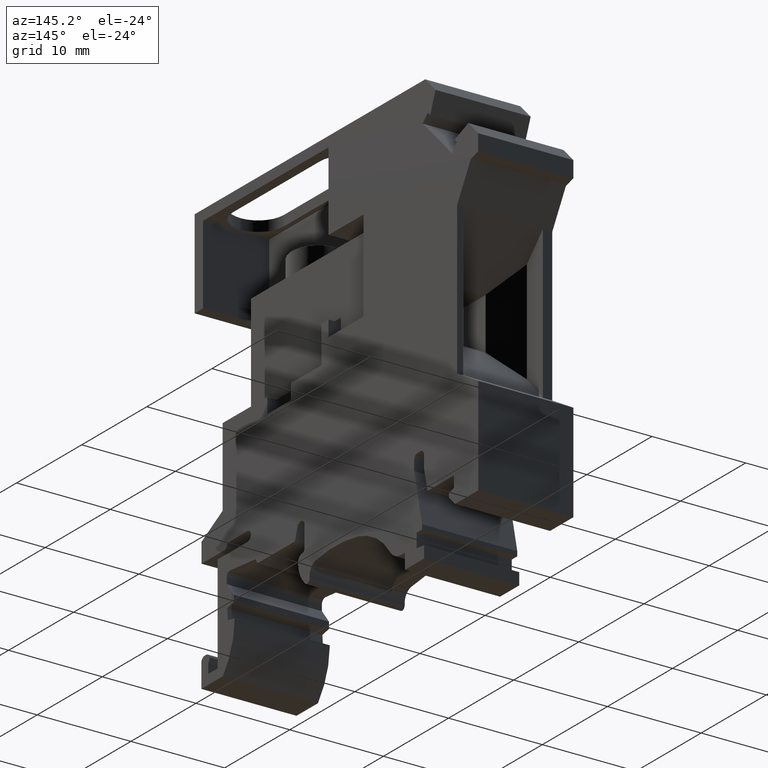
[diagram: clean part render]
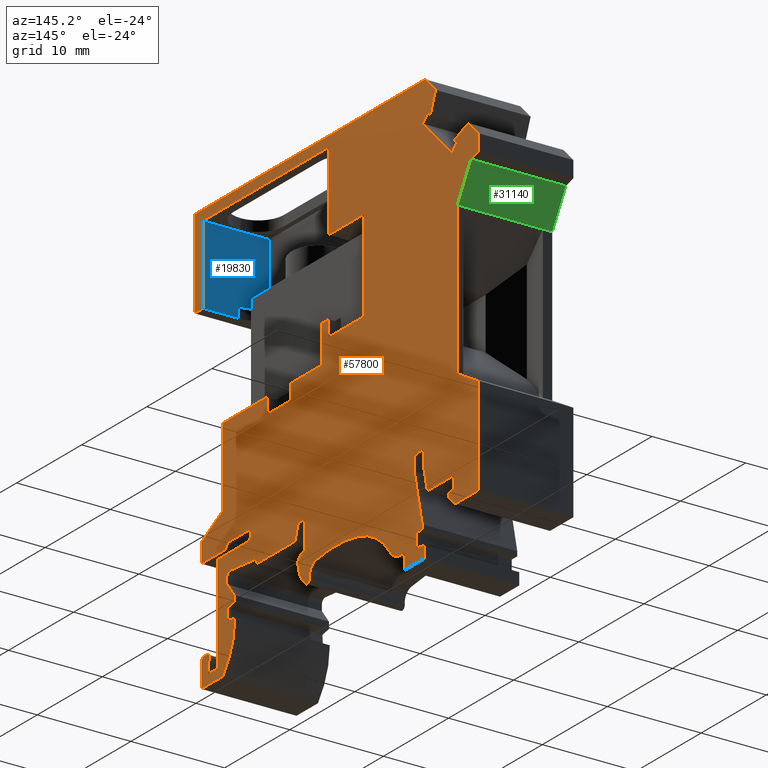
[diagram: same view with three faces highlighted in distinct colors, each labeled with its STEP entity id]
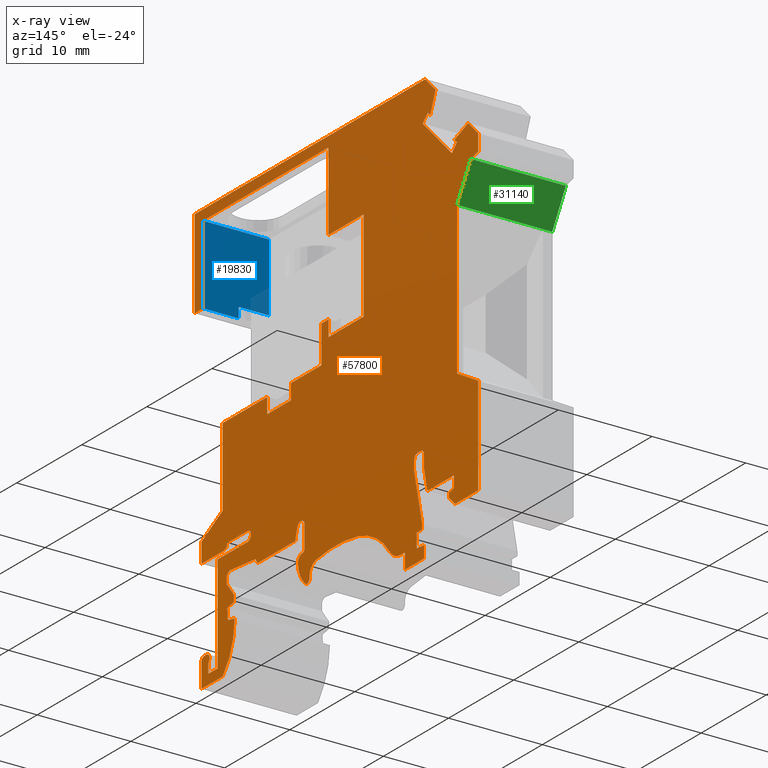
[diagram: x-ray of the same camera — body ghosted, the three highlighted faces saturated]
A machine part, auxiliary view with three faces highlighted in distinct colors.
The next image is the same camera in x-ray (body ghosted, the three faces saturated) — at least one of them is partly hidden behind the body in this view.
Their STEP definitions:

[orange] entity #57800 — the highlighted planar face has unit normal (1, 0, 0).
#6840=CARTESIAN_POINT('',(53.0791997327281,27.9086581777008,10.15));
#6850=VERTEX_POINT('',#6840);
#6930=CARTESIAN_POINT('',(53.0791997327281,26.1667997489968,10.15));
#6940=VERTEX_POINT('',#6930);
#6970=CARTESIAN_POINT('',(53.0791997327281,0.,10.15));
#6980=DIRECTION('',(0.,-1.,0.));
#6990=VECTOR('',#6980,1.);
#7000=LINE('',#6970,#6990);
#7010=EDGE_CURVE('',#6850,#6940,#7000,.T.);
#7180=CARTESIAN_POINT('',(80.9878579104221,0.,10.15));
#7190=DIRECTION('',(0.707106781186461,-0.707106781186634,0.));
#7200=VECTOR('',#7190,1.);
#7210=LINE('',#7180,#7200);
#7220=CARTESIAN_POINT('',(51.5462554799543,29.441602430475,10.15));
#7230=VERTEX_POINT('',#7220);
#7240=EDGE_CURVE('',#7230,#6850,#7210,.T.);
#7540=CARTESIAN_POINT('',(53.0791997327281,4.16587233737272,10.15));
#7550=VERTEX_POINT('',#7540);
#7580=CARTESIAN_POINT('',(0.,34.8111625914277,10.15));
#7590=DIRECTION('',(0.866025403784478,-0.499999999999933,0.));
#7600=VECTOR('',#7590,1.);
#7610=LINE('',#7580,#7600);
#7620=CARTESIAN_POINT('',(49.8291997327281,6.04226071223867,10.15));
#7630=VERTEX_POINT('',#7620);
#7640=EDGE_CURVE('',#7630,#7550,#7610,.T.);
#7990=CARTESIAN_POINT('',(25.2114315138149,0.,10.15));
#8000=DIRECTION('',(-0.258819045102482,-0.965925826289079,0.));
#8010=VECTOR('',#8000,1.);
#8020=LINE('',#7990,#8010);
#8030=CARTESIAN_POINT('',(25.288619021463,0.288067700252134,10.15));
#8040=VERTEX_POINT('',#8030);
#8050=CARTESIAN_POINT('',(24.9591997327282,-0.941341822299137,10.15));
#8060=VERTEX_POINT('',#8050);
#8070=EDGE_CURVE('',#8040,#8060,#8020,.T.);
#8370=CARTESIAN_POINT('',(13.4955573322749,0.,10.15));
#8380=DIRECTION('',(0.61566147532565,-0.788010753606728,0.));
#8390=VECTOR('',#8380,1.);
#8400=LINE('',#8370,#8390);
#8410=CARTESIAN_POINT('',(14.4591997327282,-1.23340602688677,10.15));
#8420=VERTEX_POINT('',#8410);
#8430=CARTESIAN_POINT('',(15.5591997327281,-2.64134182229907,10.15));
#8440=VERTEX_POINT('',#8430);
#8450=EDGE_CURVE('',#8420,#8440,#8400,.T.);
#8750=CARTESIAN_POINT('',(0.,-0.941341822299137,10.15));
#8760=DIRECTION('',(-1.,0.,0.));
#8770=VECTOR('',#8760,1.);
#8780=LINE('',#8750,#8770);
#8790=CARTESIAN_POINT('',(19.1591997327283,-0.941341822299138,10.15));
#8800=VERTEX_POINT('',#8790);
#8810=EDGE_CURVE('',#8060,#8800,#8780,.T.);
#9540=CARTESIAN_POINT('',(0.,0.658658177700886,10.15));
#9550=DIRECTION('',(-1.,0.,0.));
#9560=VECTOR('',#9550,1.);
#9570=LINE('',#9540,#9560);
#9580=CARTESIAN_POINT('',(25.8841997327282,0.658658177700943,10.15));
#9590=VERTEX_POINT('',#9580);
#9600=CARTESIAN_POINT('',(25.7715819346075,0.658658177700858,10.15));
#9610=VERTEX_POINT('',#9600);
#9620=EDGE_CURVE('',#9590,#9610,#9570,.T.);
#9920=CARTESIAN_POINT('',(25.7715819346075,0.158658177700943,10.15));
#9930=DIRECTION('',(0.,0.,1.));
#9940=DIRECTION('',(1.,0.,0.));
#9950=AXIS2_PLACEMENT_3D('',#9920,#9930,#9940);
#9960=CIRCLE('',#9950,0.499999999999915);
#9970=EDGE_CURVE('',#9610,#8040,#9960,.T.);
#10170=CARTESIAN_POINT('',(26.0841997327282,-2.19134182229914,10.15));
#10180=DIRECTION('',(0.,0.,1.));
#10190=DIRECTION('',(1.,0.,0.));
#10200=AXIS2_PLACEMENT_3D('',#10170,#10180,#10190);
#10210=CIRCLE('',#10200,0.300000000000011);
#10220=CARTESIAN_POINT('',(26.0841997327282,-2.49134182229915,10.15));
#10230=VERTEX_POINT('',#10220);
#10240=CARTESIAN_POINT('',(26.3841997327282,-2.19134182229914,10.15));
#10250=VERTEX_POINT('',#10240);
#10260=EDGE_CURVE('',#10230,#10250,#10210,.T.);
#10560=CARTESIAN_POINT('',(26.3841997327282,0.,10.15));
#10570=DIRECTION('',(0.,1.,0.));
#10580=VECTOR('',#10570,1.);
#10590=LINE('',#10560,#10580);
#10600=CARTESIAN_POINT('',(26.3841997327282,0.158658177700943,10.15));
#10610=VERTEX_POINT('',#10600);
#10620=EDGE_CURVE('',#10250,#10610,#10590,.T.);
#11260=CARTESIAN_POINT('',(14.4591997327282,0.,10.15));
#11270=DIRECTION('',(0.,-1.,0.));
#11280=VECTOR('',#11270,1.);
#11290=LINE('',#11260,#11280);
#11300=CARTESIAN_POINT('',(14.4591997327282,-0.591086257533789,10.15));
#11310=VERTEX_POINT('',#11300);
#11320=EDGE_CURVE('',#11310,#8420,#11290,.T.);
#11570=CARTESIAN_POINT('',(25.8841997327282,0.158658177700943,10.15));
#11580=DIRECTION('',(0.,0.,1.));
#11590=DIRECTION('',(1.,0.,0.));
#11600=AXIS2_PLACEMENT_3D('',#11570,#11580,#11590);
#11610=CIRCLE('',#11600,0.5);
#11620=EDGE_CURVE('',#10610,#9590,#11610,.T.);
#11880=CARTESIAN_POINT('',(53.0791997327281,-6.34134182229906,10.15));
#11890=VERTEX_POINT('',#11880);
#11920=CARTESIAN_POINT('',(53.0791997327281,0.,10.15));
#11930=DIRECTION('',(0.,-1.,0.));
#11940=VECTOR('',#11930,1.);
#11950=LINE('',#11920,#11940);
#11960=EDGE_CURVE('',#7550,#11890,#11950,.T.);
#12170=CARTESIAN_POINT('',(45.2591997327283,-3.54134182229916,10.15));
#12180=VERTEX_POINT('',#12170);
#12260=CARTESIAN_POINT('',(44.7341997327283,-1.17321985787694,10.15));
#12270=VERTEX_POINT('',#12260);
#12300=CARTESIAN_POINT('',(44.4741031521303,0.,10.15));
#12310=DIRECTION('',(-0.216439613938128,0.976296007119928,0.));
#12320=VECTOR('',#12310,1.);
#12330=LINE('',#12300,#12320);
#12340=EDGE_CURVE('',#12180,#12270,#12330,.T.);
#12510=CARTESIAN_POINT('',(14.959199732728,-0.591086257533675,10.15));
#12520=DIRECTION('',(0.,0.,1.));
#12530=DIRECTION('',(1.,0.,0.));
#12540=AXIS2_PLACEMENT_3D('',#12510,#12520,#12530);
#12550=CIRCLE('',#12540,0.499999999999955);
#12560=CARTESIAN_POINT('',(14.9987460769531,-0.0926526243803896,10.15));
#12570=VERTEX_POINT('',#12560);
#12580=EDGE_CURVE('',#12570,#11310,#12550,.T.);
#12830=CARTESIAN_POINT('',(0.,-1.56956935129551,10.15));
#12840=DIRECTION('',(0.875877707971958,0.482533149822672,0.));
#12850=VECTOR('',#12840,1.);
#12860=LINE('',#12830,#12850);
#12870=CARTESIAN_POINT('',(10.5791997327281,4.25865817770092,10.15));
#12880=VERTEX_POINT('',#12870);
#12890=CARTESIAN_POINT('',(13.8291997327281,6.04912815159126,10.15));
#12900=VERTEX_POINT('',#12890);
#12910=EDGE_CURVE('',#12880,#12900,#12860,.T.);
#14030=CARTESIAN_POINT('',(13.8291997327281,14.458658177701,10.15));
#14040=VERTEX_POINT('',#14030);
#14070=CARTESIAN_POINT('',(13.8291997327281,0.,10.15));
#14080=DIRECTION('',(0.,1.,0.));
#14090=VECTOR('',#14080,1.);
#14100=LINE('',#14070,#14090);
#14110=EDGE_CURVE('',#12900,#14040,#14100,.T.);
#14310=CARTESIAN_POINT('',(9.51919973272817,0.,10.15));
#14320=DIRECTION('',(0.,-1.,0.));
#14330=VECTOR('',#14320,1.);
#14340=LINE('',#14310,#14330);
#14350=CARTESIAN_POINT('',(9.51919973272817,36.058658177701,10.15));
#14360=VERTEX_POINT('',#14350);
#14370=CARTESIAN_POINT('',(9.51919973272817,26.5586581777009,10.15));
#14380=VERTEX_POINT('',#14370);
#14390=EDGE_CURVE('',#14360,#14380,#14340,.T.);
#14820=CARTESIAN_POINT('',(49.4036845679783,28.6072537936553,10.15));
#14830=VERTEX_POINT('',#14820);
#14880=CARTESIAN_POINT('',(0.,9.36873214531093,10.15));
#14890=DIRECTION('',(0.931839057156059,0.362871839026545,0.));
#14900=VECTOR('',#14890,1.);
#14910=LINE('',#14880,#14900);
#14920=EDGE_CURVE('',#14830,#7230,#14910,.T.);
#15090=CARTESIAN_POINT('',(0.,-21.5429919460219,10.15));
#15100=DIRECTION('',(0.70710678118662,0.707106781186476,0.));
#15110=VECTOR('',#15100,1.);
#15120=LINE('',#15090,#15110);
#15130=CARTESIAN_POINT('',(49.0203608979632,27.4773689519313,10.15));
#15140=VERTEX_POINT('',#15130);
#15150=CARTESIAN_POINT('',(49.7769651538329,28.2339732078008,10.15));
#15160=VERTEX_POINT('',#15150);
#15170=EDGE_CURVE('',#15140,#15160,#15120,.T.);
#15470=CARTESIAN_POINT('',(0.,78.0109383616187,10.15));
#15480=DIRECTION('',(-0.707106781186654,0.707106781186441,0.));
#15490=VECTOR('',#15480,1.);
#15500=LINE('',#15470,#15490);
#15510=EDGE_CURVE('',#15160,#14830,#15500,.T.);
#15720=CARTESIAN_POINT('',(76.4977298498922,0.,10.15));
#15730=DIRECTION('',(-0.707106781186519,0.707106781186576,0.));
#15740=VECTOR('',#15730,1.);
#15750=LINE('',#15720,#15740);
#15760=CARTESIAN_POINT('',(44.5479105069585,31.9498193429363,10.15));
#15770=VERTEX_POINT('',#15760);
#15780=EDGE_CURVE('',#15140,#15770,#15750,.T.);
#16020=CARTESIAN_POINT('',(12.5980911640221,0.,10.15));
#16030=DIRECTION('',(-0.707106781186548,-0.707106781186548,0.));
#16040=VECTOR('',#16030,1.);
#16050=LINE('',#16020,#16040);
#16060=CARTESIAN_POINT('',(45.304514762828,32.7064235988058,10.15));
#16070=VERTEX_POINT('',#16060);
#16080=EDGE_CURVE('',#16070,#15770,#16050,.T.);
#16370=CARTESIAN_POINT('',(45.6777953486824,32.3331430129513,10.15));
#16380=VERTEX_POINT('',#16370);
#16430=CARTESIAN_POINT('',(78.010938361624,0.,10.15));
#16440=DIRECTION('',(-0.707106781186441,0.707106781186654,0.));
#16450=VECTOR('',#16440,1.);
#16460=LINE('',#16430,#16450);
#16470=EDGE_CURVE('',#16380,#16070,#16460,.T.);
#16680=CARTESIAN_POINT('',(46.5121439855021,34.4757139249269,10.15));
#16690=VERTEX_POINT('',#16680);
#16740=CARTESIAN_POINT('',(33.086793741143,0.,10.15));
#16750=DIRECTION('',(-0.362871839026601,-0.931839057156037,0.));
#16760=VECTOR('',#16750,1.);
#16770=LINE('',#16740,#16760);
#16780=EDGE_CURVE('',#16690,#16380,#16770,.T.);
#16950=CARTESIAN_POINT('',(80.9878579104291,0.,10.15));
#16960=DIRECTION('',(0.707106781186548,-0.707106781186548,0.));
#16970=VECTOR('',#16960,1.);
#16980=LINE('',#16950,#16970);
#16990=CARTESIAN_POINT('',(44.9291997327281,36.058658177701,10.15));
#17000=VERTEX_POINT('',#16990);
#17010=EDGE_CURVE('',#17000,#16690,#16980,.T.);
#17820=CARTESIAN_POINT('',(0.,36.058658177701,10.15));
#17830=DIRECTION('',(1.,0.,0.));
#17840=VECTOR('',#17830,1.);
#17850=LINE('',#17820,#17840);
#17860=EDGE_CURVE('',#14360,#17000,#17850,.T.);
#18790=CARTESIAN_POINT('',(30.0791997327281,34.958658177701,10.15));
#18800=VERTEX_POINT('',#18790);
#18950=CARTESIAN_POINT('',(10.8191997327281,34.958658177701,10.15));
#18960=VERTEX_POINT('',#18950);
#18990=CARTESIAN_POINT('',(0.,34.958658177701,10.15));
#19000=DIRECTION('',(-1.,0.,0.));
#19010=VECTOR('',#19000,1.);
#19020=LINE('',#18990,#19010);
#19030=EDGE_CURVE('',#18800,#18960,#19020,.T.);
#19200=CARTESIAN_POINT('',(0.,26.5586581777009,10.15));
#19210=DIRECTION('',(-1.,0.,0.));
#19220=VECTOR('',#19210,1.);
#19230=LINE('',#19200,#19220);
#19240=CARTESIAN_POINT('',(10.8191997327281,26.5586581777009,10.15));
#19250=VERTEX_POINT('',#19240);
#19260=EDGE_CURVE('',#19250,#14380,#19230,.T.);
#19670=CARTESIAN_POINT('',(10.8191997327281,0.,10.15));
#19680=DIRECTION('',(0.,-1.,0.));
#19690=VECTOR('',#19680,1.);
#19700=LINE('',#19670,#19690);
#19710=EDGE_CURVE('',#18960,#19250,#19700,.T.);
#20000=CARTESIAN_POINT('',(13.8646161327159,-9.84134182229906,10.15));
#20010=VERTEX_POINT('',#20000);
#20090=CARTESIAN_POINT('',(10.5591997327281,-9.84134182229906,10.15));
#20100=VERTEX_POINT('',#20090);
#20130=CARTESIAN_POINT('',(0.,-9.84134182229906,10.15));
#20140=DIRECTION('',(-1.,0.,0.));
#20150=VECTOR('',#20140,1.);
#20160=LINE('',#20130,#20150);
#20170=EDGE_CURVE('',#20010,#20100,#20160,.T.);
#20340=CARTESIAN_POINT('',(49.3341997327282,0.,10.15));
#20350=DIRECTION('',(0.,1.,0.));
#20360=VECTOR('',#20350,1.);
#20370=LINE('',#20340,#20360);
#20380=CARTESIAN_POINT('',(49.3341997327282,-4.74134182229915,10.15));
#20390=VERTEX_POINT('',#20380);
#20400=CARTESIAN_POINT('',(49.3341997327282,-3.54134182229916,10.15));
#20410=VERTEX_POINT('',#20400);
#20420=EDGE_CURVE('',#20390,#20410,#20370,.T.);
#21820=CARTESIAN_POINT('',(30.0791997327281,26.5586581777009,10.15));
#21830=VERTEX_POINT('',#21820);
#21880=CARTESIAN_POINT('',(30.0791997327281,0.,10.15));
#21890=DIRECTION('',(0.,1.,0.));
#21900=VECTOR('',#21890,1.);
#21910=LINE('',#21880,#21900);
#21920=EDGE_CURVE('',#21830,#18800,#21910,.T.);
#22090=CARTESIAN_POINT('',(30.0791997327281,26.5586581777009,10.15));
#22100=DIRECTION('',(1.,0.,0.));
#22110=VECTOR('',#22100,1.);
#22120=LINE('',#22090,#22110);
#22130=CARTESIAN_POINT('',(35.4791997327281,26.5586581777009,10.15));
#22140=VERTEX_POINT('',#22130);
#22150=EDGE_CURVE('',#21830,#22140,#22120,.T.);
#22660=CARTESIAN_POINT('',(35.4791997327281,0.,10.15));
#22670=DIRECTION('',(3.53307768457147E-16,1.,0.));
#22680=VECTOR('',#22670,1.);
#22690=LINE('',#22660,#22680);
#22700=CARTESIAN_POINT('',(35.4791997327281,16.758658177701,10.15));
#22710=VERTEX_POINT('',#22700);
#22720=EDGE_CURVE('',#22710,#22140,#22690,.T.);
#22990=CARTESIAN_POINT('',(10.5791997327281,2.15865817770094,10.15));
#23000=VERTEX_POINT('',#22990);
#23030=CARTESIAN_POINT('',(0.,2.15865817770094,10.15));
#23040=DIRECTION('',(-1.,0.,0.));
#23050=VECTOR('',#23040,1.);
#23060=LINE('',#23030,#23050);
#23070=CARTESIAN_POINT('',(14.0113065139147,2.15865817770094,10.15));
#23080=VERTEX_POINT('',#23070);
#23090=EDGE_CURVE('',#23080,#23000,#23060,.T.);
#23370=CARTESIAN_POINT('',(17.6341997327282,1.65865817770094,10.15));
#23380=VERTEX_POINT('',#23370);
#23460=CARTESIAN_POINT('',(18.1536041568128,2.15865817769072,10.15));
#23470=VERTEX_POINT('',#23460);
#23500=CARTESIAN_POINT('',(17.6316997327281,2.18103615558056,10.15));
#23510=DIRECTION('',(0.,0.,1.));
#23520=DIRECTION('',(1.,0.,0.));
#23530=AXIS2_PLACEMENT_3D('',#23500,#23510,#23520);
#23540=CIRCLE('',#23530,0.522383960103672);
#23550=EDGE_CURVE('',#23380,#23470,#23540,.T.);
#23720=CARTESIAN_POINT('',(44.4591997327282,0.,10.15));
#23730=DIRECTION('',(0.,-1.,0.));
#23740=VECTOR('',#23730,1.);
#23750=LINE('',#23720,#23740);
#23760=CARTESIAN_POINT('',(44.4591997327282,-6.44134182229913,10.15));
#23770=VERTEX_POINT('',#23760);
#23780=CARTESIAN_POINT('',(44.4591997327282,-6.94134182229914,10.15));
#23790=VERTEX_POINT('',#23780);
#23800=EDGE_CURVE('',#23770,#23790,#23750,.T.);
#24160=CARTESIAN_POINT('',(17.6291997327282,2.70865817770101,10.15));
#24170=VERTEX_POINT('',#24160);
#24200=CARTESIAN_POINT('',(17.6291997327282,2.18365817770098,10.15));
#24210=DIRECTION('',(0.,0.,1.));
#24220=DIRECTION('',(1.,0.,0.));
#24230=AXIS2_PLACEMENT_3D('',#24200,#24210,#24220);
#24240=CIRCLE('',#24230,0.52500000000003);
#24250=EDGE_CURVE('',#23470,#24170,#24240,.T.);
#24460=CARTESIAN_POINT('',(30.0791997327281,18.458658177701,10.15));
#24470=VERTEX_POINT('',#24460);
#24640=CARTESIAN_POINT('',(30.0791997327281,16.758658177701,10.15));
#24650=VERTEX_POINT('',#24640);
#24680=CARTESIAN_POINT('',(30.0791997327281,0.,10.15));
#24690=DIRECTION('',(0.,-1.,0.));
#24700=VECTOR('',#24690,1.);
#24710=LINE('',#24680,#24700);
#24720=EDGE_CURVE('',#24470,#24650,#24710,.T.);
#24900=CARTESIAN_POINT('',(0.,16.758658177701,10.15));
#24910=DIRECTION('',(1.,0.,0.));
#24920=VECTOR('',#24910,1.);
#24930=LINE('',#24900,#24920);
#24940=EDGE_CURVE('',#24650,#22710,#24930,.T.);
#25340=CARTESIAN_POINT('',(28.3725317637343,-5.10246528334324,10.15));
#25350=DIRECTION('',(0.,0.,1.));
#25360=DIRECTION('',(1.,0.,0.));
#25370=AXIS2_PLACEMENT_3D('',#25340,#25350,#25360);
#25380=CIRCLE('',#25370,1.20000000000004);
#25390=CARTESIAN_POINT('',(28.1495983262149,-3.9233551602267,10.15));
#25400=VERTEX_POINT('',#25390);
#25410=CARTESIAN_POINT('',(27.1812827404797,-5.24712268756014,10.15));
#25420=VERTEX_POINT('',#25410);
#25430=EDGE_CURVE('',#25400,#25420,#25380,.T.);
#25730=CARTESIAN_POINT('',(0.,-6.94134182229914,10.15));
#25740=DIRECTION('',(-1.,0.,0.));
#25750=VECTOR('',#25740,1.);
#25760=LINE('',#25730,#25750);
#25770=CARTESIAN_POINT('',(43.6091997327282,-6.94134182229914,10.15));
#25780=VERTEX_POINT('',#25770);
#25790=EDGE_CURVE('',#23790,#25780,#25760,.T.);
#26040=CARTESIAN_POINT('',(43.2341997327282,0.,10.15));
#26050=DIRECTION('',(0.,-1.,0.));
#26060=VECTOR('',#26050,1.);
#26070=LINE('',#26040,#26060);
#26080=CARTESIAN_POINT('',(43.2341997327282,0.158658177700943,10.15));
#26090=VERTEX_POINT('',#26080);
#26100=CARTESIAN_POINT('',(43.2341997327282,-0.915723905312957,10.15));
#26110=VERTEX_POINT('',#26100);
#26120=EDGE_CURVE('',#26090,#26110,#26070,.T.);
#26480=CARTESIAN_POINT('',(14.5113065139147,2.70865817770095,10.15));
#26490=VERTEX_POINT('',#26480);
#26520=CARTESIAN_POINT('',(0.,2.70865817770095,10.15));
#26530=DIRECTION('',(-1.,0.,0.));
#26540=VECTOR('',#26530,1.);
#26550=LINE('',#26520,#26540);
#26560=EDGE_CURVE('',#24170,#26490,#26550,.T.);
#27160=CARTESIAN_POINT('',(0.,18.458658177701,10.15));
#27170=DIRECTION('',(-1.,0.,0.));
#27180=VECTOR('',#27170,1.);
#27190=LINE('',#27160,#27180);
#27200=CARTESIAN_POINT('',(28.9791997327281,18.458658177701,10.15));
#27210=VERTEX_POINT('',#27200);
#27220=EDGE_CURVE('',#24470,#27210,#27190,.T.);
#27680=CARTESIAN_POINT('',(28.9791997327281,14.458658177701,10.15));
#27690=VERTEX_POINT('',#27680);
#27720=CARTESIAN_POINT('',(0.,14.458658177701,10.15));
#27730=DIRECTION('',(-1.,0.,0.));
#27740=VECTOR('',#27730,1.);
#27750=LINE('',#27720,#27740);
#27760=CARTESIAN_POINT('',(24.2791997327282,14.458658177701,10.15));
#27770=VERTEX_POINT('',#27760);
#27780=EDGE_CURVE('',#27690,#27770,#27750,.T.);
#28090=CARTESIAN_POINT('',(20.6791997327281,14.458658177701,10.15));
#28100=VERTEX_POINT('',#28090);
#28130=CARTESIAN_POINT('',(0.,14.458658177701,10.15));
#28140=DIRECTION('',(1.,0.,0.));
#28150=VECTOR('',#28140,1.);
#28160=LINE('',#28130,#28150);
#28170=EDGE_CURVE('',#14040,#28100,#28160,.T.);
#28690=CARTESIAN_POINT('',(20.6791997327281,12.8086581777009,10.15));
#28700=VERTEX_POINT('',#28690);
#28870=CARTESIAN_POINT('',(24.2791997327282,12.8086581777009,10.15));
#28880=VERTEX_POINT('',#28870);
#28910=CARTESIAN_POINT('',(0.,12.8086581777009,10.15));
#28920=DIRECTION('',(1.,0.,0.));
#28930=VECTOR('',#28920,1.);
#28940=LINE('',#28910,#28930);
#28950=EDGE_CURVE('',#28700,#28880,#28940,.T.);
#29390=CARTESIAN_POINT('',(20.6791997327281,0.,10.15));
#29400=DIRECTION('',(0.,-1.,0.));
#29410=VECTOR('',#29400,1.);
#29420=LINE('',#29390,#29410);
#29430=EDGE_CURVE('',#28100,#28700,#29420,.T.);
#29630=CARTESIAN_POINT('',(24.2791997327282,0.,10.15));
#29640=DIRECTION('',(0.,1.,0.));
#29650=VECTOR('',#29640,1.);
#29660=LINE('',#29630,#29650);
#29670=EDGE_CURVE('',#28880,#27770,#29660,.T.);
#29900=CARTESIAN_POINT('',(44.7341997327283,0.158658177700943,10.15));
#29910=VERTEX_POINT('',#29900);
#29940=CARTESIAN_POINT('',(44.7341997327283,0.,10.15));
#29950=DIRECTION('',(0.,1.,0.));
#29960=VECTOR('',#29950,1.);
#29970=LINE('',#29940,#29960);
#29980=EDGE_CURVE('',#12270,#29910,#29970,.T.);
#30150=CARTESIAN_POINT('',(0.,-17.0748917554812,10.15));
#30160=DIRECTION('',(0.970142500145332,0.242535625036333,0.));
#30170=VECTOR('',#30160,1.);
#30180=LINE('',#30150,#30170);
#30190=CARTESIAN_POINT('',(48.5341997327282,-4.94134182229914,10.15));
#30200=VERTEX_POINT('',#30190);
#30210=EDGE_CURVE('',#30200,#20390,#30180,.T.);
#30460=CARTESIAN_POINT('',(48.5341997327282,0.,10.15));
#30470=DIRECTION('',(0.,1.,0.));
#30480=VECTOR('',#30470,1.);
#30490=LINE('',#30460,#30480);
#30500=CARTESIAN_POINT('',(48.5341997327282,-5.39134182229908,10.15));
#30510=VERTEX_POINT('',#30500);
#30520=EDGE_CURVE('',#30510,#30200,#30490,.T.);
#30910=CARTESIAN_POINT('',(49.8291997327281,22.2213514818061,10.15));
#30920=VERTEX_POINT('',#30910);
#30950=CARTESIAN_POINT('',(36.9996964729502,0.,10.15));
#30960=DIRECTION('',(0.499999999999998,0.86602540378444,0.));
#30970=VECTOR('',#30960,1.);
#30980=LINE('',#30950,#30970);
#30990=CARTESIAN_POINT('',(51.9291997327283,25.858658177701,10.15));
#31000=VERTEX_POINT('',#30990);
#31010=EDGE_CURVE('',#30920,#31000,#30980,.T.);
#31330=CARTESIAN_POINT('',(49.4841997327279,-6.34134182229906,10.15));
#31340=VERTEX_POINT('',#31330);
#31370=CARTESIAN_POINT('',(0.,-6.34134182229906,10.15));
#31380=DIRECTION('',(-1.,0.,0.));
#31390=VECTOR('',#31380,1.);
#31400=LINE('',#31370,#31390);
#31410=EDGE_CURVE('',#11890,#31340,#31400,.T.);
#31820=CARTESIAN_POINT('',(0.,-3.54134182229916,10.15));
#31830=DIRECTION('',(-1.,0.,0.));
#31840=VECTOR('',#31830,1.);
#31850=LINE('',#31820,#31840);
#31860=EDGE_CURVE('',#20410,#12180,#31850,.T.);
#32060=CARTESIAN_POINT('',(43.7341997327282,0.158658177700943,10.15));
#32070=DIRECTION('',(0.,0.,1.));
#32080=DIRECTION('',(1.,0.,0.));
#32090=AXIS2_PLACEMENT_3D('',#32060,#32070,#32080);
#32100=CIRCLE('',#32090,0.499999999999915);
#32110=CARTESIAN_POINT('',(43.7341997327282,0.658658177700886,10.15));
#32120=VERTEX_POINT('',#32110);
#32130=EDGE_CURVE('',#32120,#26090,#32100,.T.);
#32380=CARTESIAN_POINT('',(26.7841997327282,-5.29534182229906,10.15));
#32390=DIRECTION('',(0.,0.,1.));
#32400=DIRECTION('',(1.,0.,0.));
#32410=AXIS2_PLACEMENT_3D('',#32380,#32390,#32400);
#32420=CIRCLE('',#32410,0.399999999999995);
#32430=CARTESIAN_POINT('',(26.5201121022341,-5.59577105426568,10.15));
#32440=VERTEX_POINT('',#32430);
#32450=EDGE_CURVE('',#32440,#25420,#32420,.T.);
#32700=CARTESIAN_POINT('',(31.1591997327283,-19.8413418222991,10.15));
#32710=DIRECTION('',(0.,0.,1.));
#32720=DIRECTION('',(1.,0.,0.));
#32730=AXIS2_PLACEMENT_3D('',#32700,#32710,#32720);
#32740=CIRCLE('',#32730,16.2000000000001);
#32750=CARTESIAN_POINT('',(34.620024337029,-4.01532864594071,10.15));
#32760=VERTEX_POINT('',#32750);
#32770=EDGE_CURVE('',#32760,#25400,#32740,.T.);
#33020=CARTESIAN_POINT('',(28.7318460076218,-3.07967623654554,10.15));
#33030=DIRECTION('',(0.,0.,1.));
#33040=DIRECTION('',(1.,0.,0.));
#33050=AXIS2_PLACEMENT_3D('',#33020,#33030,#33040);
#33060=CIRCLE('',#33050,3.34999999999994);
#33070=CARTESIAN_POINT('',(25.3848214714355,-3.22083839212087,10.15));
#33080=VERTEX_POINT('',#33070);
#33090=EDGE_CURVE('',#33080,#32440,#33060,.T.);
#33350=CARTESIAN_POINT('',(32.9109751497199,-11.8306437947597,10.15));
#33360=DIRECTION('',(0.,0.,1.));
#33370=DIRECTION('',(1.,0.,0.));
#33380=AXIS2_PLACEMENT_3D('',#33350,#33360,#33370);
#33390=CIRCLE('',#33380,7.99999999999997);
#33400=CARTESIAN_POINT('',(39.5175548161265,-7.31920221679126,10.15));
#33410=VERTEX_POINT('',#33400);
#33420=EDGE_CURVE('',#33410,#32760,#33390,.T.);
#33700=CARTESIAN_POINT('',(41.8091997327281,-9.84134182229906,10.15));
#33710=VERTEX_POINT('',#33700);
#33790=CARTESIAN_POINT('',(41.8091997327281,-8.19134182229914,10.15));
#33800=VERTEX_POINT('',#33790);
#33830=CARTESIAN_POINT('',(41.8091997327281,0.,10.15));
#33840=DIRECTION('',(0.,1.,0.));
#33850=VECTOR('',#33840,1.);
#33860=LINE('',#33830,#33850);
#33870=EDGE_CURVE('',#33710,#33800,#33860,.T.);
#34100=CARTESIAN_POINT('',(41.1691997327281,-8.19134182229914,10.15));
#34110=VERTEX_POINT('',#34100);
#34140=CARTESIAN_POINT('',(0.,-8.19134182229914,10.15));
#34150=DIRECTION('',(-1.,0.,0.));
#34160=VECTOR('',#34150,1.);
#34170=LINE('',#34140,#34160);
#34180=EDGE_CURVE('',#33800,#34110,#34170,.T.);
#34350=CARTESIAN_POINT('',(26.0841997327282,-3.19134182229914,10.15));
#34360=DIRECTION('',(0.,0.,1.));
#34370=DIRECTION('',(1.,0.,0.));
#34380=AXIS2_PLACEMENT_3D('',#34350,#34360,#34370);
#34390=CIRCLE('',#34380,0.699999999999989);
#34400=EDGE_CURVE('',#10230,#33080,#34390,.T.);
#34640=CARTESIAN_POINT('',(44.7591997327282,-9.84134182229906,10.15));
#34650=VERTEX_POINT('',#34640);
#34700=CARTESIAN_POINT('',(0.,-9.84134182229906,10.15));
#34710=DIRECTION('',(-1.,0.,0.));
#34720=VECTOR('',#34710,1.);
#34730=LINE('',#34700,#34720);
#34740=EDGE_CURVE('',#34650,#33710,#34730,.T.);
#34910=CARTESIAN_POINT('',(44.7591997327282,0.,10.15));
#34920=DIRECTION('',(0.,-1.,0.));
#34930=VECTOR('',#34920,1.);
#34940=LINE('',#34910,#34930);
#34950=CARTESIAN_POINT('',(44.7591997327282,-8.56634182229914,10.15));
#34960=VERTEX_POINT('',#34950);
#34970=EDGE_CURVE('',#34960,#34650,#34940,.T.);
#35220=CARTESIAN_POINT('',(41.1691997327281,-6.19134182229914,10.15));
#35230=DIRECTION('',(0.,0.,1.));
#35240=DIRECTION('',(1.,0.,0.));
#35250=AXIS2_PLACEMENT_3D('',#35220,#35230,#35240);
#35260=CIRCLE('',#35250,1.99999999999998);
#35270=EDGE_CURVE('',#33410,#34110,#35260,.T.);
#35490=CARTESIAN_POINT('',(10.5791997327281,0.,10.15));
#35500=DIRECTION('',(0.,1.,0.));
#35510=VECTOR('',#35500,1.);
#35520=LINE('',#35490,#35510);
#35530=EDGE_CURVE('',#23000,#12880,#35520,.T.);
#35750=CARTESIAN_POINT('',(14.5113065139147,2.65865817770094,10.15));
#35760=VERTEX_POINT('',#35750);
#35810=CARTESIAN_POINT('',(14.0113065139147,2.65865817770094,10.15));
#35820=DIRECTION('',(0.,0.,1.));
#35830=DIRECTION('',(1.,0.,0.));
#35840=AXIS2_PLACEMENT_3D('',#35810,#35820,#35830);
#35850=CIRCLE('',#35840,0.5);
#35860=EDGE_CURVE('',#23080,#35760,#35850,.T.);
#36060=CARTESIAN_POINT('',(14.5113065139147,0.,10.15));
#36070=DIRECTION('',(0.,-1.,0.));
#36080=VECTOR('',#36070,1.);
#36090=LINE('',#36060,#36080);
#36100=EDGE_CURVE('',#26490,#35760,#36090,.T.);
#36660=CARTESIAN_POINT('',(11.0591997327281,-7.34134182229906,10.15));
#36670=DIRECTION('',(0.,0.,1.));
#36680=DIRECTION('',(1.,0.,0.));
#36690=AXIS2_PLACEMENT_3D('',#36660,#36670,#36680);
#36700=CIRCLE('',#36690,0.5);
#36710=CARTESIAN_POINT('',(11.0591997327281,-6.84134182229906,10.15));
#36720=VERTEX_POINT('',#36710);
#36730=CARTESIAN_POINT('',(10.5591997327281,-7.34134182229906,10.15));
#36740=VERTEX_POINT('',#36730);
#36750=EDGE_CURVE('',#36720,#36740,#36700,.T.);
#37250=CARTESIAN_POINT('',(10.5591997327281,0.,10.15));
#37260=DIRECTION('',(0.,1.,0.));
#37270=VECTOR('',#37260,1.);
#37280=LINE('',#37250,#37270);
#37290=EDGE_CURVE('',#20100,#36740,#37280,.T.);
#38270=CARTESIAN_POINT('',(0.,-6.84134182229906,10.15));
#38280=DIRECTION('',(-1.,0.,0.));
#38290=VECTOR('',#38280,1.);
#38300=LINE('',#38270,#38290);
#38310=CARTESIAN_POINT('',(11.3091997327281,-6.84134182229906,10.15));
#38320=VERTEX_POINT('',#38310);
#38330=EDGE_CURVE('',#38320,#36720,#38300,.T.);
#38580=CARTESIAN_POINT('',(11.6091997327282,0.,10.15));
#38590=DIRECTION('',(0.,1.,0.));
#38600=VECTOR('',#38590,1.);
#38610=LINE('',#38580,#38600);
#38620=CARTESIAN_POINT('',(11.6091997327282,-8.79134182229905,10.15));
#38630=VERTEX_POINT('',#38620);
#38640=CARTESIAN_POINT('',(11.6091997327282,-7.74134182229901,10.15));
#38650=VERTEX_POINT('',#38640);
#38660=EDGE_CURVE('',#38630,#38650,#38610,.T.);
#38970=CARTESIAN_POINT('',(11.3091997327281,-7.34134182229906,10.15));
#38980=DIRECTION('',(0.,0.,1.));
#38990=DIRECTION('',(1.,0.,0.));
#39000=AXIS2_PLACEMENT_3D('',#38970,#38980,#38990);
#39010=CIRCLE('',#39000,0.5);
#39020=EDGE_CURVE('',#38650,#38320,#39010,.T.);
#39250=CARTESIAN_POINT('',(13.0591997327281,-8.79134182229905,10.15));
#39260=VERTEX_POINT('',#39250);
#39360=CARTESIAN_POINT('',(13.0591997327281,1.65865817770094,10.15));
#39370=VERTEX_POINT('',#39360);
#39400=CARTESIAN_POINT('',(13.0591997327281,0.,10.15));
#39410=DIRECTION('',(0.,1.,0.));
#39420=VECTOR('',#39410,1.);
#39430=LINE('',#39400,#39420);
#39440=EDGE_CURVE('',#39260,#39370,#39430,.T.);
#39640=CARTESIAN_POINT('',(0.,1.65865817770094,10.15));
#39650=DIRECTION('',(1.,0.,0.));
#39660=VECTOR('',#39650,1.);
#39670=LINE('',#39640,#39660);
#39680=EDGE_CURVE('',#39370,#23380,#39670,.T.);
#39880=CARTESIAN_POINT('',(0.,-8.79134182229905,10.15));
#39890=DIRECTION('',(-1.,0.,0.));
#39900=VECTOR('',#39890,1.);
#39910=LINE('',#39880,#39900);
#39920=EDGE_CURVE('',#39260,#38630,#39910,.T.);
#40090=CARTESIAN_POINT('',(0.,-6.38312388476662,10.15));
#40100=DIRECTION('',(-0.981416387151379,-0.191890268202259,0.));
#40110=VECTOR('',#40100,1.);
#40120=LINE('',#40090,#40110);
#40130=CARTESIAN_POINT('',(15.5591997327281,-3.34092992019285,10.15));
#40140=VERTEX_POINT('',#40130);
#40150=CARTESIAN_POINT('',(14.5341997327282,-3.54134182229916,10.15));
#40160=VERTEX_POINT('',#40150);
#40170=EDGE_CURVE('',#40140,#40160,#40120,.T.);
#40470=CARTESIAN_POINT('',(14.2390879142032,0.,10.15));
#40480=DIRECTION('',(0.0830454798537595,-0.996545758244878,0.));
#40490=VECTOR('',#40480,1.);
#40500=LINE('',#40470,#40490);
#40510=CARTESIAN_POINT('',(14.6341997327282,-4.74134182229915,10.15));
#40520=VERTEX_POINT('',#40510);
#40530=EDGE_CURVE('',#40160,#40520,#40500,.T.);
#40780=CARTESIAN_POINT('',(15.6591997327282,0.,10.15));
#40790=DIRECTION('',(0.,-1.,0.));
#40800=VECTOR('',#40790,1.);
#40810=LINE('',#40780,#40800);
#40820=CARTESIAN_POINT('',(15.6591997327282,-4.94134182229914,10.15));
#40830=VERTEX_POINT('',#40820);
#40840=CARTESIAN_POINT('',(15.6591997327282,-5.14134182229961,10.15));
#40850=VERTEX_POINT('',#40840);
#40860=EDGE_CURVE('',#40830,#40850,#40810,.T.);
#41160=CARTESIAN_POINT('',(0.,-1.88588821591326,10.15));
#41170=DIRECTION('',(0.9814905920257,-0.191510359419642,0.));
#41180=VECTOR('',#41170,1.);
#41190=LINE('',#41160,#41180);
#41200=EDGE_CURVE('',#40520,#40830,#41190,.T.);
#41400=CARTESIAN_POINT('',(8.19481872812804,-4.98385446349437,10.15));
#41410=DIRECTION('',(0.,0.,1.));
#41420=DIRECTION('',(1.,0.,0.));
#41430=AXIS2_PLACEMENT_3D('',#41400,#41410,#41420);
#41440=CIRCLE('',#41430,7.46604219449759);
#41450=EDGE_CURVE('',#20010,#40850,#41440,.T.);
#41650=CARTESIAN_POINT('',(15.5591997327281,0.,10.15));
#41660=DIRECTION('',(0.,-1.,0.));
#41670=VECTOR('',#41660,1.);
#41680=LINE('',#41650,#41670);
#41690=EDGE_CURVE('',#8440,#40140,#41680,.T.);
#41890=CARTESIAN_POINT('',(0.,1.25812214508205,10.15));
#41900=DIRECTION('',(-0.995969175038445,0.0896961669930173,0.));
#41910=VECTOR('',#41900,1.);
#41920=LINE('',#41890,#41910);
#41930=CARTESIAN_POINT('',(18.8705245981333,-0.441341822298939,10.15));
#41940=VERTEX_POINT('',#41930);
#41950=EDGE_CURVE('',#41940,#12570,#41920,.T.);
#42200=CARTESIAN_POINT('',(18.6157157782243,0.,10.15));
#42210=DIRECTION('',(-0.500000000000089,0.866025403784387,0.));
#42220=VECTOR('',#42210,1.);
#42230=LINE('',#42200,#42220);
#42240=EDGE_CURVE('',#8800,#41940,#42230,.T.);
#42400=CARTESIAN_POINT('',(49.8291997327281,0.,10.15));
#42410=DIRECTION('',(0.,1.,0.));
#42420=VECTOR('',#42410,1.);
#42430=LINE('',#42400,#42420);
#42440=EDGE_CURVE('',#7630,#30920,#42430,.T.);
#50670=CARTESIAN_POINT('',(28.9791997327281,0.,10.15));
#50680=DIRECTION('',(0.,-1.,0.));
#50690=VECTOR('',#50680,1.);
#50700=LINE('',#50670,#50690);
#50710=EDGE_CURVE('',#27210,#27690,#50700,.T.);
#56370=CARTESIAN_POINT('',(0.,0.,10.15));
#56380=DIRECTION('',(0.,0.,1.));
#56390=DIRECTION('',(1.,0.,0.));
#56400=AXIS2_PLACEMENT_3D('',#56370,#56380,#56390);
#56410=PLANE('',#56400);
#56420=ORIENTED_EDGE('',*,*,#14110,.F.);
#56430=ORIENTED_EDGE('',*,*,#28170,.F.);
#56440=ORIENTED_EDGE('',*,*,#29430,.F.);
#56450=ORIENTED_EDGE('',*,*,#28950,.F.);
#56460=ORIENTED_EDGE('',*,*,#29670,.F.);
#56470=ORIENTED_EDGE('',*,*,#27780,.T.);
#56480=ORIENTED_EDGE('',*,*,#50710,.T.);
#56490=ORIENTED_EDGE('',*,*,#27220,.T.);
#56500=ORIENTED_EDGE('',*,*,#24720,.F.);
#56510=ORIENTED_EDGE('',*,*,#24940,.F.);
#56520=ORIENTED_EDGE('',*,*,#22720,.F.);
#56530=ORIENTED_EDGE('',*,*,#22150,.T.);
#56540=ORIENTED_EDGE('',*,*,#21920,.F.);
#56550=ORIENTED_EDGE('',*,*,#19030,.F.);
#56560=ORIENTED_EDGE('',*,*,#19710,.F.);
#56570=ORIENTED_EDGE('',*,*,#19260,.F.);
#56580=ORIENTED_EDGE('',*,*,#14390,.T.);
#56590=ORIENTED_EDGE('',*,*,#17860,.F.);
#56600=ORIENTED_EDGE('',*,*,#17010,.F.);
#56610=ORIENTED_EDGE('',*,*,#16780,.F.);
#56620=ORIENTED_EDGE('',*,*,#16470,.F.);
#56630=ORIENTED_EDGE('',*,*,#16080,.F.);
#56640=ORIENTED_EDGE('',*,*,#15780,.T.);
#56650=ORIENTED_EDGE('',*,*,#15170,.F.);
#56660=ORIENTED_EDGE('',*,*,#15510,.F.);
#56670=ORIENTED_EDGE('',*,*,#14920,.F.);
#56680=ORIENTED_EDGE('',*,*,#7240,.F.);
#56690=ORIENTED_EDGE('',*,*,#7010,.F.);
#56700=CARTESIAN_POINT('',(0.,11.944271045718,10.15));
#56710=DIRECTION('',(-0.96592582628905,-0.25881904510259,0.));
#56720=VECTOR('',#56710,1.);
#56730=LINE('',#56700,#56720);
#56740=EDGE_CURVE('',#6940,#31000,#56730,.T.);
#56750=ORIENTED_EDGE('',*,*,#56740,.F.);
#56760=ORIENTED_EDGE('',*,*,#31010,.T.);
#56770=ORIENTED_EDGE('',*,*,#42440,.T.);
#56780=ORIENTED_EDGE('',*,*,#7640,.F.);
#56790=ORIENTED_EDGE('',*,*,#11960,.F.);
#56800=ORIENTED_EDGE('',*,*,#31410,.F.);
#56810=CARTESIAN_POINT('',(43.1428579104306,0.,10.15));
#56820=DIRECTION('',(-0.707106781186449,0.707106781186646,0.));
#56830=VECTOR('',#56820,1.);
#56840=LINE('',#56810,#56830);
#56850=EDGE_CURVE('',#31340,#30510,#56840,.T.);
#56860=ORIENTED_EDGE('',*,*,#56850,.F.);
#56870=ORIENTED_EDGE('',*,*,#30520,.F.);
#56880=ORIENTED_EDGE('',*,*,#30210,.F.);
#56890=ORIENTED_EDGE('',*,*,#20420,.F.);
#56900=ORIENTED_EDGE('',*,*,#31860,.F.);
#56910=ORIENTED_EDGE('',*,*,#12340,.F.);
#56920=ORIENTED_EDGE('',*,*,#29980,.F.);
#56930=CARTESIAN_POINT('',(44.2341997327283,0.158658177700943,10.15));
#56940=DIRECTION('',(0.,0.,1.));
#56950=DIRECTION('',(1.,0.,0.));
#56960=AXIS2_PLACEMENT_3D('',#56930,#56940,#56950);
#56970=CIRCLE('',#56960,0.5);
#56980=CARTESIAN_POINT('',(44.2341997327283,0.658658177700886,10.15));
#56990=VERTEX_POINT('',#56980);
#57000=EDGE_CURVE('',#29910,#56990,#56970,.T.);
#57010=ORIENTED_EDGE('',*,*,#57000,.F.);
#57020=CARTESIAN_POINT('',(0.,0.658658177700886,10.15));
#57030=DIRECTION('',(-1.,0.,0.));
#57040=VECTOR('',#57030,1.);
#57050=LINE('',#57020,#57040);
#57060=EDGE_CURVE('',#56990,#32120,#57050,.T.);
#57070=ORIENTED_EDGE('',*,*,#57060,.F.);
#57080=ORIENTED_EDGE('',*,*,#32130,.F.);
#57090=ORIENTED_EDGE('',*,*,#26120,.F.);
#57100=CARTESIAN_POINT('',(43.0311886304658,0.,10.15));
#57110=DIRECTION('',(0.216439613938091,-0.976296007119936,0.));
#57120=VECTOR('',#57110,1.);
#57130=LINE('',#57100,#57120);
#57140=EDGE_CURVE('',#26110,#23770,#57130,.T.);
#57150=ORIENTED_EDGE('',*,*,#57140,.F.);
#57160=ORIENTED_EDGE('',*,*,#23800,.F.);
#57170=ORIENTED_EDGE('',*,*,#25790,.F.);
#57180=CARTESIAN_POINT('',(43.6091997327282,0.,10.15));
#57190=DIRECTION('',(0.,-1.,0.));
#57200=VECTOR('',#57190,1.);
#57210=LINE('',#57180,#57200);
#57220=CARTESIAN_POINT('',(43.6091997327282,-8.44134182229914,10.15));
#57230=VERTEX_POINT('',#57220);
#57240=EDGE_CURVE('',#25780,#57230,#57210,.T.);
#57250=ORIENTED_EDGE('',*,*,#57240,.F.);
#57260=CARTESIAN_POINT('',(0.,-3.70121141656772,10.15));
#57270=DIRECTION('',(0.994144463069456,-0.108059180768421,0.));
#57280=VECTOR('',#57270,1.);
#57290=LINE('',#57260,#57280);
#57300=EDGE_CURVE('',#57230,#34960,#57290,.T.);
#57310=ORIENTED_EDGE('',*,*,#57300,.F.);
#57320=ORIENTED_EDGE('',*,*,#34970,.F.);
#57330=ORIENTED_EDGE('',*,*,#34740,.F.);
#57340=ORIENTED_EDGE('',*,*,#33870,.F.);
#57350=ORIENTED_EDGE('',*,*,#34180,.F.);
#57360=ORIENTED_EDGE('',*,*,#35270,.T.);
#57370=ORIENTED_EDGE('',*,*,#33420,.F.);
#57380=ORIENTED_EDGE('',*,*,#32770,.F.);
#57390=ORIENTED_EDGE('',*,*,#25430,.F.);
#57400=ORIENTED_EDGE('',*,*,#32450,.T.);
#57410=ORIENTED_EDGE('',*,*,#33090,.T.);
#57420=ORIENTED_EDGE('',*,*,#34400,.T.);
#57430=ORIENTED_EDGE('',*,*,#10260,.F.);
#57440=ORIENTED_EDGE('',*,*,#10620,.F.);
#57450=ORIENTED_EDGE('',*,*,#11620,.F.);
#57460=ORIENTED_EDGE('',*,*,#9620,.F.);
#57470=ORIENTED_EDGE('',*,*,#9970,.F.);
#57480=ORIENTED_EDGE('',*,*,#8070,.F.);
#57490=ORIENTED_EDGE('',*,*,#8810,.F.);
#57500=ORIENTED_EDGE('',*,*,#42240,.F.);
#57510=ORIENTED_EDGE('',*,*,#41950,.F.);
#57520=ORIENTED_EDGE('',*,*,#12580,.F.);
#57530=ORIENTED_EDGE('',*,*,#11320,.F.);
#57540=ORIENTED_EDGE('',*,*,#8450,.F.);
#57550=ORIENTED_EDGE('',*,*,#41690,.F.);
#57560=ORIENTED_EDGE('',*,*,#40170,.F.);
#57570=ORIENTED_EDGE('',*,*,#40530,.F.);
#57580=ORIENTED_EDGE('',*,*,#41200,.F.);
#57590=ORIENTED_EDGE('',*,*,#40860,.F.);
#57600=ORIENTED_EDGE('',*,*,#41450,.T.);
#57610=ORIENTED_EDGE('',*,*,#20170,.F.);
#57620=ORIENTED_EDGE('',*,*,#37290,.F.);
#57630=ORIENTED_EDGE('',*,*,#36750,.T.);
#57640=ORIENTED_EDGE('',*,*,#38330,.T.);
#57650=ORIENTED_EDGE('',*,*,#39020,.T.);
#57660=ORIENTED_EDGE('',*,*,#38660,.T.);
#57670=ORIENTED_EDGE('',*,*,#39920,.T.);
#57680=ORIENTED_EDGE('',*,*,#39440,.F.);
#57690=ORIENTED_EDGE('',*,*,#39680,.F.);
#57700=ORIENTED_EDGE('',*,*,#23550,.F.);
#57710=ORIENTED_EDGE('',*,*,#24250,.F.);
#57720=ORIENTED_EDGE('',*,*,#26560,.F.);
#57730=ORIENTED_EDGE('',*,*,#36100,.F.);
#57740=ORIENTED_EDGE('',*,*,#35860,.T.);
#57750=ORIENTED_EDGE('',*,*,#23090,.F.);
#57760=ORIENTED_EDGE('',*,*,#35530,.F.);
#57770=ORIENTED_EDGE('',*,*,#12910,.F.);
#57780=EDGE_LOOP('',(#57770,#57760,#57750,#57740,#57730,#57720,#57710,
#57700,#57690,#57680,#57670,#57660,#57650,#57640,#57630,#57620,#57610,
#57600,#57590,#57580,#57570,#57560,#57550,#57540,#57530,#57520,#57510,
#57500,#57490,#57480,#57470,#57460,#57450,#57440,#57430,#57420,#57410,
#57400,#57390,#57380,#57370,#57360,#57350,#57340,#57330,#57320,#57310,
#57250,#57170,#57160,#57150,#57090,#57080,#57070,#57010,#56920,#56910,
#56900,#56890,#56880,#56870,#56860,#56800,#56790,#56780,#56770,#56760,
#56750,#56690,#56680,#56670,#56660,#56650,#56640,#56630,#56620,#56610,
#56600,#56590,#56580,#56570,#56560,#56550,#56540,#56530,#56520,#56510,
#56500,#56490,#56480,#56470,#56460,#56450,#56440,#56430,#56420));
#57790=FACE_OUTER_BOUND('',#57780,.T.);
#57800=ADVANCED_FACE('',(#57790),#56410,.T.);

[blue] entity #19830 — the highlighted planar face has unit normal (0, 1, 0).
#9060=CARTESIAN_POINT('',(10.8191997327281,27.6586581777009,0.));
#9070=DIRECTION('',(0.,0.,1.));
#9080=VECTOR('',#9070,1.);
#9090=LINE('',#9060,#9080);
#9100=CARTESIAN_POINT('',(10.8191997327281,27.6586581777009,3.1));
#9110=VERTEX_POINT('',#9100);
#9120=CARTESIAN_POINT('',(10.8191997327281,27.6586581777009,6.35));
#9130=VERTEX_POINT('',#9120);
#9140=EDGE_CURVE('',#9110,#9130,#9090,.T.);
#11000=CARTESIAN_POINT('',(10.8191997327281,26.5586581777009,6.35));
#11010=VERTEX_POINT('',#11000);
#11040=CARTESIAN_POINT('',(10.8191997327281,26.5586581777009,6.35));
#11050=DIRECTION('',(0.,1.,0.));
#11060=VECTOR('',#11050,1.);
#11070=LINE('',#11040,#11060);
#11080=EDGE_CURVE('',#11010,#9130,#11070,.T.);
#18870=CARTESIAN_POINT('',(10.8191997327281,34.958658177701,3.1));
#18880=VERTEX_POINT('',#18870);
#18910=CARTESIAN_POINT('',(10.8191997327281,34.958658177701,0.));
#18920=DIRECTION('',(0.,0.,-1.));
#18930=VECTOR('',#18920,1.);
#18940=LINE('',#18910,#18930);
#18950=CARTESIAN_POINT('',(10.8191997327281,34.958658177701,10.15));
#18960=VERTEX_POINT('',#18950);
#18970=EDGE_CURVE('',#18960,#18880,#18940,.T.);
#19240=CARTESIAN_POINT('',(10.8191997327281,26.5586581777009,10.15));
#19250=VERTEX_POINT('',#19240);
#19280=CARTESIAN_POINT('',(10.8191997327281,26.5586581777009,0.));
#19290=DIRECTION('',(0.,0.,1.));
#19300=VECTOR('',#19290,1.);
#19310=LINE('',#19280,#19300);
#19320=EDGE_CURVE('',#11010,#19250,#19310,.T.);
#19600=CARTESIAN_POINT('',(10.8191997327281,26.5586581777009,8.15));
#19610=DIRECTION('',(1.,0.,0.));
#19620=DIRECTION('',(0.,-1.,0.));
#19630=AXIS2_PLACEMENT_3D('',#19600,#19610,#19620);
#19640=PLANE('',#19630);
#19650=ORIENTED_EDGE('',*,*,#11080,.T.);
#19660=ORIENTED_EDGE('',*,*,#19320,.F.);
#19670=CARTESIAN_POINT('',(10.8191997327281,0.,10.15));
#19680=DIRECTION('',(0.,-1.,0.));
#19690=VECTOR('',#19680,1.);
#19700=LINE('',#19670,#19690);
#19710=EDGE_CURVE('',#18960,#19250,#19700,.T.);
#19720=ORIENTED_EDGE('',*,*,#19710,.T.);
#19730=ORIENTED_EDGE('',*,*,#18970,.F.);
#19740=CARTESIAN_POINT('',(10.8191997327281,26.5586581777009,3.1));
#19750=DIRECTION('',(0.,1.,0.));
#19760=VECTOR('',#19750,1.);
#19770=LINE('',#19740,#19760);
#19780=EDGE_CURVE('',#9110,#18880,#19770,.T.);
#19790=ORIENTED_EDGE('',*,*,#19780,.T.);
#19800=ORIENTED_EDGE('',*,*,#9140,.F.);
#19810=EDGE_LOOP('',(#19800,#19790,#19730,#19720,#19660,#19650));
#19820=FACE_OUTER_BOUND('',#19810,.T.);
#19830=ADVANCED_FACE('',(#19820),#19640,.T.);

[green] entity #31140 — the highlighted planar face has unit normal (0, -0.866, 0.5).
#6230=CARTESIAN_POINT('',(49.8291997327281,22.2213514818061,0.));
#6240=VERTEX_POINT('',#6230);
#6270=CARTESIAN_POINT('',(-139.523204299512,-305.746632837346,0.));
#6280=DIRECTION('',(0.499999999999998,0.86602540378444,0.));
#6290=VECTOR('',#6280,1.);
#6300=LINE('',#6270,#6290);
#6310=CARTESIAN_POINT('',(51.9291997327283,25.858658177701,0.));
#6320=VERTEX_POINT('',#6310);
#6330=EDGE_CURVE('',#6240,#6320,#6300,.T.);
#30720=CARTESIAN_POINT('',(51.9291997327283,25.858658177701,8.15));
#30730=DIRECTION('',(-0.86602540378444,0.499999999999998,0.));
#30740=DIRECTION('',(0.499999999999998,0.86602540378444,0.));
#30750=AXIS2_PLACEMENT_3D('',#30720,#30730,#30740);
#30760=PLANE('',#30750);
#30770=CARTESIAN_POINT('',(49.8291997327281,22.2213514818061,0.));
#30780=DIRECTION('',(0.,0.,-1.));
#30790=VECTOR('',#30780,1.);
#30800=LINE('',#30770,#30790);
#30810=CARTESIAN_POINT('',(49.8291997327281,22.2213514818061,9.5));
#30820=VERTEX_POINT('',#30810);
#30830=CARTESIAN_POINT('',(49.8291997327281,22.2213514818061,1.));
#30840=VERTEX_POINT('',#30830);
#30850=EDGE_CURVE('',#30820,#30840,#30800,.T.);
#30860=ORIENTED_EDGE('',*,*,#30850,.T.);
#30870=CARTESIAN_POINT('',(49.8291997327281,22.2213514818061,8.15));
#30880=DIRECTION('',(0.,0.,-1.));
#30890=VECTOR('',#30880,1.);
#30900=LINE('',#30870,#30890);
#30910=CARTESIAN_POINT('',(49.8291997327281,22.2213514818061,10.15));
#30920=VERTEX_POINT('',#30910);
#30930=EDGE_CURVE('',#30920,#30820,#30900,.T.);
#30940=ORIENTED_EDGE('',*,*,#30930,.T.);
#30950=CARTESIAN_POINT('',(36.9996964729502,0.,10.15));
#30960=DIRECTION('',(0.499999999999998,0.86602540378444,0.));
#30970=VECTOR('',#30960,1.);
#30980=LINE('',#30950,#30970);
#30990=CARTESIAN_POINT('',(51.9291997327283,25.858658177701,10.15));
#31000=VERTEX_POINT('',#30990);
#31010=EDGE_CURVE('',#30920,#31000,#30980,.T.);
#31020=ORIENTED_EDGE('',*,*,#31010,.F.);
#31030=CARTESIAN_POINT('',(51.9291997327283,25.858658177701,0.));
#31040=DIRECTION('',(0.,0.,-1.));
#31050=VECTOR('',#31040,1.);
#31060=LINE('',#31030,#31050);
#31070=EDGE_CURVE('',#31000,#6320,#31060,.T.);
#31080=ORIENTED_EDGE('',*,*,#31070,.F.);
#31090=ORIENTED_EDGE('',*,*,#6330,.T.);
#31100=EDGE_CURVE('',#30840,#6240,#30900,.T.);
#31110=ORIENTED_EDGE('',*,*,#31100,.T.);
#31120=EDGE_LOOP('',(#31110,#31090,#31080,#31020,#30940,#30860));
#31130=FACE_OUTER_BOUND('',#31120,.T.);
#31140=ADVANCED_FACE('',(#31130),#30760,.F.);